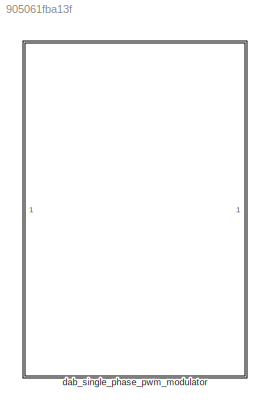
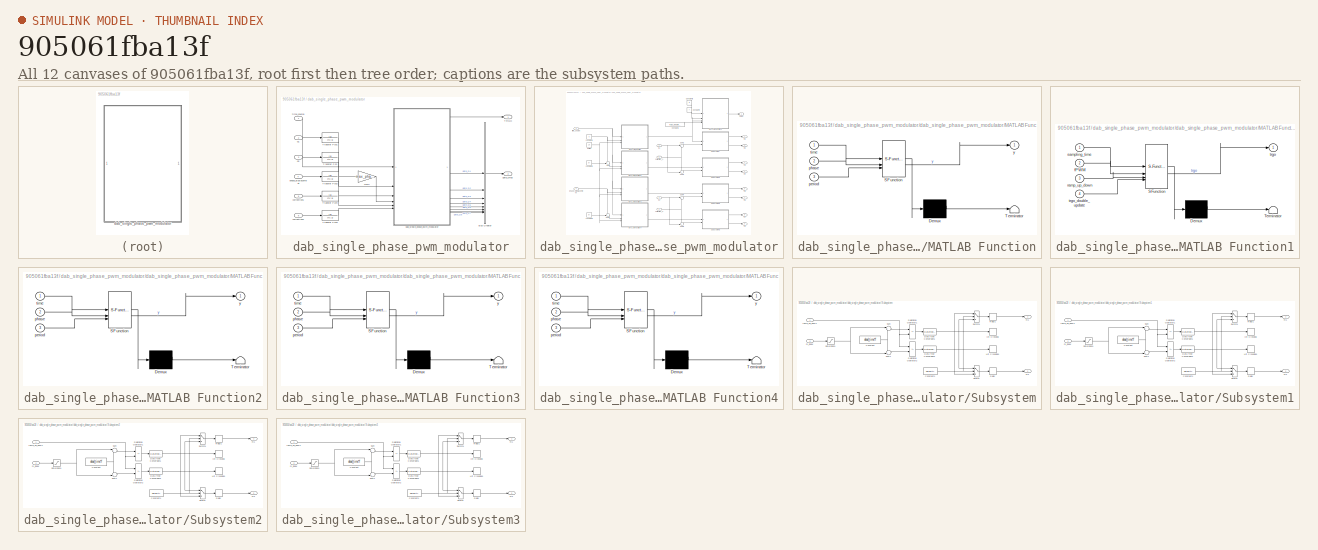
[diagram: thumbnail index - all 12 canvases of the model, root first then tree order]
MODEL slx_905061fba13f
KIND library
CONFIG AbsTol = auto
CONFIG EnableMultiTasking = off
CONFIG FixedStep = auto
CONFIG MaxStep = auto
CONFIG MinStep = auto
CONFIG RelTol = 1e-3
CONFIG SampleTimeConstraint = Unconstrained
CONFIG SolverName = VariableStepAuto
CONFIG StartTime = 0.0
CONFIG StopTime = 10.0
BLOCK [SubSystem] dab_single_phase_pwm_modulator
BLOCK [BusCreator] dab_single_phase_pwm_modulator/Bus Creator
  DisplayOption = bar
  InheritFromInputs = on
  Inputs = 8
BLOCK [Gain] dab_single_phase_pwm_modulator/Gain
  Gain = max_phase_displacement
  OutDataTypeStr = double
BLOCK [Outport] dab_single_phase_pwm_modulator/TRGO
BLOCK [TransferFcn] dab_single_phase_pwm_modulator/Transfer Fcn
  Denominator = [tc 1]
BLOCK [TransferFcn] dab_single_phase_pwm_modulator/Transfer Fcn1
  Denominator = [tc 1]
BLOCK [TransferFcn] dab_single_phase_pwm_modulator/Transfer Fcn2
  Denominator = [tc 1]
BLOCK [TransferFcn] dab_single_phase_pwm_modulator/Transfer Fcn3
  Denominator = [tc 1]
BLOCK [TransferFcn] dab_single_phase_pwm_modulator/Transfer Fcn4
  Denominator = [tc 1]
BLOCK [Inport] dab_single_phase_pwm_modulator/correction1
  Port = 5
BLOCK [Inport] dab_single_phase_pwm_modulator/correction2
  Port = 6
BLOCK [Inport] dab_single_phase_pwm_modulator/d1
  Port = 2
BLOCK [Inport] dab_single_phase_pwm_modulator/d2
  Port = 3
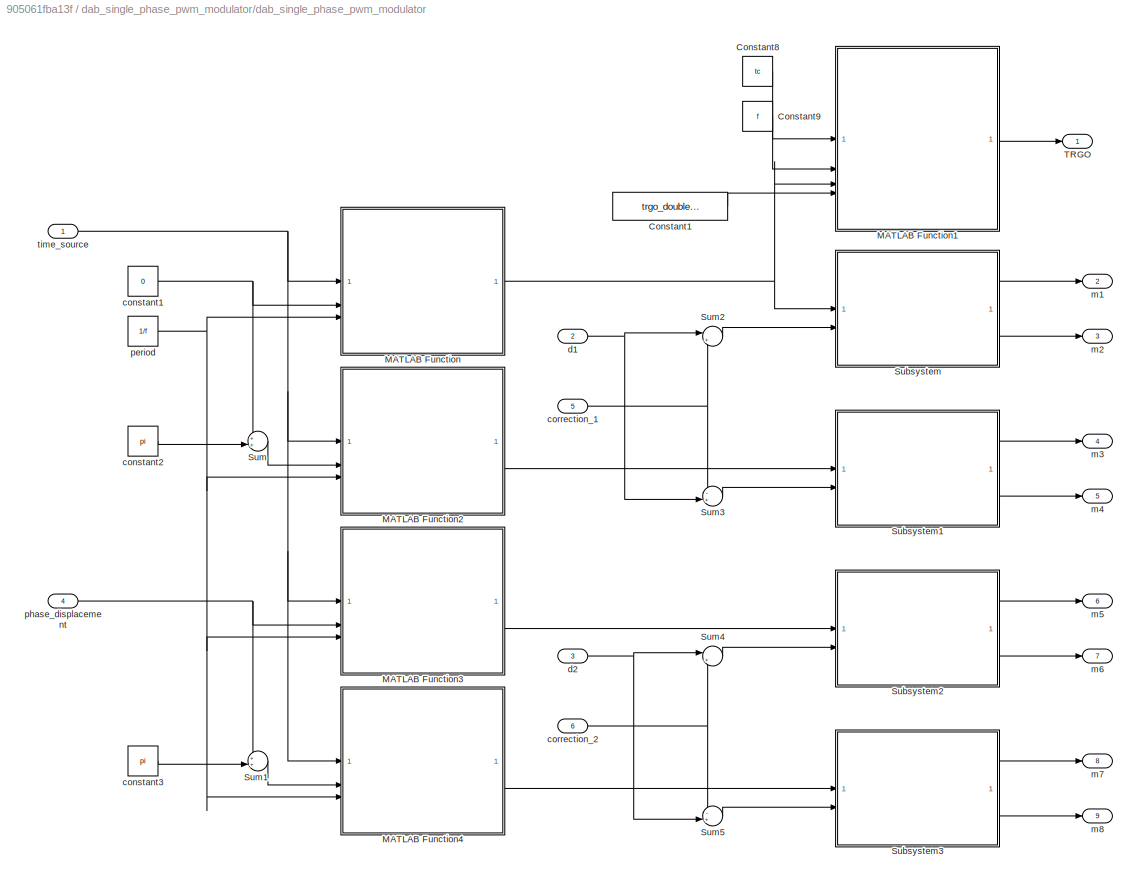
BLOCK [SubSystem] dab_single_phase_pwm_modulator/dab_single_phase_pwm_modulator
BLOCK [Constant] dab_single_phase_pwm_modulator/dab_single_phase_pwm_modulator/Constant1
  Value = trgo_double_update
BLOCK [Constant] dab_single_phase_pwm_modulator/dab_single_phase_pwm_modulator/Constant8
  Value = tc
BLOCK [Constant] dab_single_phase_pwm_modulator/dab_single_phase_pwm_modulator/Constant9
  Value = f
BLOCK [SubSystem] dab_single_phase_pwm_modulator/dab_single_phase_pwm_modulator/MATLAB Function
  ErrorFcn = Stateflow.Translate.translate
  PermitHierarchicalResolution = ExplicitOnly
  SFBlockType = MATLAB Function
  SystemSampleTime = tc
  TreatAsAtomicUnit = on
BLOCK [Demux] dab_single_phase_pwm_modulator/dab_single_phase_pwm_modulator/MATLAB Function/ Demux 
  Outputs = 1
BLOCK [S-Function] dab_single_phase_pwm_modulator/dab_single_phase_pwm_modulator/MATLAB Function/ SFunction 
  EnableBusSupport = off
  FunctionName = sf_sfun
  PortCounts = [3 2]
  SFcnIsStateOwnerBlock = off
  SFunctionDeploymentMode = off
  Tag = Stateflow S-Function 3
BLOCK [Terminator] dab_single_phase_pwm_modulator/dab_single_phase_pwm_modulator/MATLAB Function/ Terminator 
BLOCK [Inport] dab_single_phase_pwm_modulator/dab_single_phase_pwm_modulator/MATLAB Function/period
  Port = 3
BLOCK [Inport] dab_single_phase_pwm_modulator/dab_single_phase_pwm_modulator/MATLAB Function/phase
  Port = 2
BLOCK [Inport] dab_single_phase_pwm_modulator/dab_single_phase_pwm_modulator/MATLAB Function/time
BLOCK [Outport] dab_single_phase_pwm_modulator/dab_single_phase_pwm_modulator/MATLAB Function/y
BLOCK [SubSystem] dab_single_phase_pwm_modulator/dab_single_phase_pwm_modulator/MATLAB Function1
  ErrorFcn = Stateflow.Translate.translate
  PermitHierarchicalResolution = ExplicitOnly
  SFBlockType = MATLAB Function
  SystemSampleTime = tc
  TreatAsAtomicUnit = on
BLOCK [Demux] dab_single_phase_pwm_modulator/dab_single_phase_pwm_modulator/MATLAB Function1/ Demux 
  Outputs = 1
BLOCK [S-Function] dab_single_phase_pwm_modulator/dab_single_phase_pwm_modulator/MATLAB Function1/ SFunction 
  EnableBusSupport = off
  FunctionName = sf_sfun
  PortCounts = [4 2]
  SFcnIsStateOwnerBlock = off
  SFunctionDeploymentMode = off
  Tag = Stateflow S-Function 4
BLOCK [Terminator] dab_single_phase_pwm_modulator/dab_single_phase_pwm_modulator/MATLAB Function1/ Terminator 
BLOCK [Inport] dab_single_phase_pwm_modulator/dab_single_phase_pwm_modulator/MATLAB Function1/fPWM
  Port = 2
BLOCK [Inport] dab_single_phase_pwm_modulator/dab_single_phase_pwm_modulator/MATLAB Function1/ramp_up_down
  Port = 3
BLOCK [Inport] dab_single_phase_pwm_modulator/dab_single_phase_pwm_modulator/MATLAB Function1/sampling_time
BLOCK [Outport] dab_single_phase_pwm_modulator/dab_single_phase_pwm_modulator/MATLAB Function1/trgo
BLOCK [Inport] dab_single_phase_pwm_modulator/dab_single_phase_pwm_modulator/MATLAB Function1/trgo_double_update
  Port = 4
BLOCK [SubSystem] dab_single_phase_pwm_modulator/dab_single_phase_pwm_modulator/MATLAB Function2
  ErrorFcn = Stateflow.Translate.translate
  PermitHierarchicalResolution = ExplicitOnly
  SFBlockType = MATLAB Function
  SystemSampleTime = tc
  TreatAsAtomicUnit = on
BLOCK [Demux] dab_single_phase_pwm_modulator/dab_single_phase_pwm_modulator/MATLAB Function2/ Demux 
  Outputs = 1
BLOCK [S-Function] dab_single_phase_pwm_modulator/dab_single_phase_pwm_modulator/MATLAB Function2/ SFunction 
  EnableBusSupport = off
  FunctionName = sf_sfun
  PortCounts = [3 2]
  SFcnIsStateOwnerBlock = off
  SFunctionDeploymentMode = off
  Tag = Stateflow S-Function 2
BLOCK [Terminator] dab_single_phase_pwm_modulator/dab_single_phase_pwm_modulator/MATLAB Function2/ Terminator 
BLOCK [Inport] dab_single_phase_pwm_modulator/dab_single_phase_pwm_modulator/MATLAB Function2/period
  Port = 3
BLOCK [Inport] dab_single_phase_pwm_modulator/dab_single_phase_pwm_modulator/MATLAB Function2/phase
  Port = 2
BLOCK [Inport] dab_single_phase_pwm_modulator/dab_single_phase_pwm_modulator/MATLAB Function2/time
BLOCK [Outport] dab_single_phase_pwm_modulator/dab_single_phase_pwm_modulator/MATLAB Function2/y
BLOCK [SubSystem] dab_single_phase_pwm_modulator/dab_single_phase_pwm_modulator/MATLAB Function3
  ErrorFcn = Stateflow.Translate.translate
  PermitHierarchicalResolution = ExplicitOnly
  SFBlockType = MATLAB Function
  SystemSampleTime = tc
  TreatAsAtomicUnit = on
BLOCK [Demux] dab_single_phase_pwm_modulator/dab_single_phase_pwm_modulator/MATLAB Function3/ Demux 
  Outputs = 1
BLOCK [S-Function] dab_single_phase_pwm_modulator/dab_single_phase_pwm_modulator/MATLAB Function3/ SFunction 
  EnableBusSupport = off
  FunctionName = sf_sfun
  PortCounts = [3 2]
  SFcnIsStateOwnerBlock = off
  SFunctionDeploymentMode = off
  Tag = Stateflow S-Function 5
BLOCK [Terminator] dab_single_phase_pwm_modulator/dab_single_phase_pwm_modulator/MATLAB Function3/ Terminator 
BLOCK [Inport] dab_single_phase_pwm_modulator/dab_single_phase_pwm_modulator/MATLAB Function3/period
  Port = 3
BLOCK [Inport] dab_single_phase_pwm_modulator/dab_single_phase_pwm_modulator/MATLAB Function3/phase
  Port = 2
BLOCK [Inport] dab_single_phase_pwm_modulator/dab_single_phase_pwm_modulator/MATLAB Function3/time
BLOCK [Outport] dab_single_phase_pwm_modulator/dab_single_phase_pwm_modulator/MATLAB Function3/y
BLOCK [SubSystem] dab_single_phase_pwm_modulator/dab_single_phase_pwm_modulator/MATLAB Function4
  ErrorFcn = Stateflow.Translate.translate
  PermitHierarchicalResolution = ExplicitOnly
  SFBlockType = MATLAB Function
  SystemSampleTime = tc
  TreatAsAtomicUnit = on
BLOCK [Demux] dab_single_phase_pwm_modulator/dab_single_phase_pwm_modulator/MATLAB Function4/ Demux 
  Outputs = 1
BLOCK [S-Function] dab_single_phase_pwm_modulator/dab_single_phase_pwm_modulator/MATLAB Function4/ SFunction 
  EnableBusSupport = off
  FunctionName = sf_sfun
  PortCounts = [3 2]
  SFcnIsStateOwnerBlock = off
  SFunctionDeploymentMode = off
  Tag = Stateflow S-Function 6
BLOCK [Terminator] dab_single_phase_pwm_modulator/dab_single_phase_pwm_modulator/MATLAB Function4/ Terminator 
BLOCK [Inport] dab_single_phase_pwm_modulator/dab_single_phase_pwm_modulator/MATLAB Function4/period
  Port = 3
BLOCK [Inport] dab_single_phase_pwm_modulator/dab_single_phase_pwm_modulator/MATLAB Function4/phase
  Port = 2
BLOCK [Inport] dab_single_phase_pwm_modulator/dab_single_phase_pwm_modulator/MATLAB Function4/time
BLOCK [Outport] dab_single_phase_pwm_modulator/dab_single_phase_pwm_modulator/MATLAB Function4/y
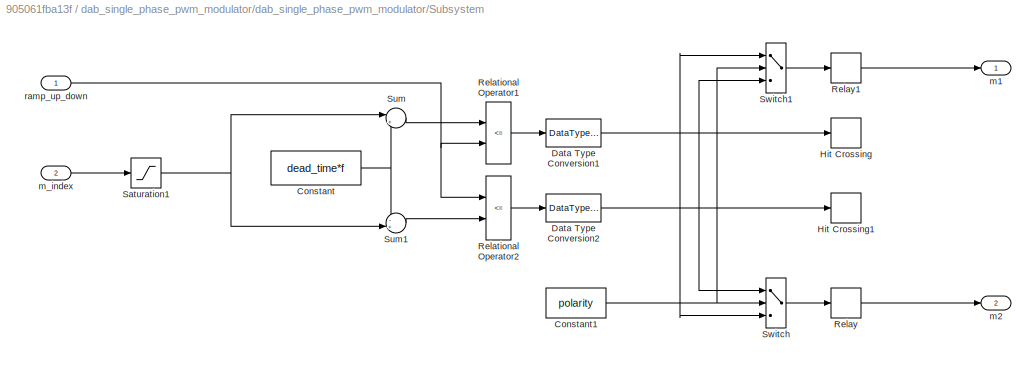
BLOCK [SubSystem] dab_single_phase_pwm_modulator/dab_single_phase_pwm_modulator/Subsystem
BLOCK [Constant] dab_single_phase_pwm_modulator/dab_single_phase_pwm_modulator/Subsystem/Constant
  Value = dead_time*f
BLOCK [Constant] dab_single_phase_pwm_modulator/dab_single_phase_pwm_modulator/Subsystem/Constant1
  Value = polarity
BLOCK [DataTypeConversion] dab_single_phase_pwm_modulator/dab_single_phase_pwm_modulator/Subsystem/Data Type Conversion1
BLOCK [DataTypeConversion] dab_single_phase_pwm_modulator/dab_single_phase_pwm_modulator/Subsystem/Data Type Conversion2
BLOCK [HitCross] dab_single_phase_pwm_modulator/dab_single_phase_pwm_modulator/Subsystem/Hit Crossing
  ShowOutputPort = off
BLOCK [HitCross] dab_single_phase_pwm_modulator/dab_single_phase_pwm_modulator/Subsystem/Hit Crossing1
  ShowOutputPort = off
BLOCK [RelationalOperator] dab_single_phase_pwm_modulator/dab_single_phase_pwm_modulator/Subsystem/Relational Operator1
  InputSameDT = off
  Operator = <=
BLOCK [RelationalOperator] dab_single_phase_pwm_modulator/dab_single_phase_pwm_modulator/Subsystem/Relational Operator2
  InputSameDT = off
  Operator = <=
BLOCK [Relay] dab_single_phase_pwm_modulator/dab_single_phase_pwm_modulator/Subsystem/Relay
  OffOutputValue = neg_cmd_gate
  OnOutputValue = pos_cmd_gate
BLOCK [Relay] dab_single_phase_pwm_modulator/dab_single_phase_pwm_modulator/Subsystem/Relay1
  OffOutputValue = neg_cmd_gate
  OnOutputValue = pos_cmd_gate
BLOCK [Saturate] dab_single_phase_pwm_modulator/dab_single_phase_pwm_modulator/Subsystem/Saturation1
  LowerLimit = m_low
  UpperLimit = m_up
BLOCK [Sum] dab_single_phase_pwm_modulator/dab_single_phase_pwm_modulator/Subsystem/Sum
  Inputs = |++
  SaturateOnIntegerOverflow = on
BLOCK [Sum] dab_single_phase_pwm_modulator/dab_single_phase_pwm_modulator/Subsystem/Sum1
  Inputs = -+|
  SaturateOnIntegerOverflow = on
BLOCK [Switch] dab_single_phase_pwm_modulator/dab_single_phase_pwm_modulator/Subsystem/Switch
  Criteria = u2 > Threshold
  InputSameDT = off
  SaturateOnIntegerOverflow = off
BLOCK [Switch] dab_single_phase_pwm_modulator/dab_single_phase_pwm_modulator/Subsystem/Switch1
  Criteria = u2 > Threshold
  InputSameDT = off
  SaturateOnIntegerOverflow = off
BLOCK [Outport] dab_single_phase_pwm_modulator/dab_single_phase_pwm_modulator/Subsystem/m1
BLOCK [Outport] dab_single_phase_pwm_modulator/dab_single_phase_pwm_modulator/Subsystem/m2
  Port = 2
BLOCK [Inport] dab_single_phase_pwm_modulator/dab_single_phase_pwm_modulator/Subsystem/m_index
  Port = 2
BLOCK [Inport] dab_single_phase_pwm_modulator/dab_single_phase_pwm_modulator/Subsystem/ramp_up_down
BLOCK [SubSystem] dab_single_phase_pwm_modulator/dab_single_phase_pwm_modulator/Subsystem1
BLOCK [Constant] dab_single_phase_pwm_modulator/dab_single_phase_pwm_modulator/Subsystem1/Constant
  Value = dead_time*f
BLOCK [Constant] dab_single_phase_pwm_modulator/dab_single_phase_pwm_modulator/Subsystem1/Constant1
  Value = polarity
BLOCK [DataTypeConversion] dab_single_phase_pwm_modulator/dab_single_phase_pwm_modulator/Subsystem1/Data Type Conversion1
BLOCK [DataTypeConversion] dab_single_phase_pwm_modulator/dab_single_phase_pwm_modulator/Subsystem1/Data Type Conversion2
BLOCK [HitCross] dab_single_phase_pwm_modulator/dab_single_phase_pwm_modulator/Subsystem1/Hit Crossing
  ShowOutputPort = off
BLOCK [HitCross] dab_single_phase_pwm_modulator/dab_single_phase_pwm_modulator/Subsystem1/Hit Crossing1
  ShowOutputPort = off
BLOCK [RelationalOperator] dab_single_phase_pwm_modulator/dab_single_phase_pwm_modulator/Subsystem1/Relational Operator1
  InputSameDT = off
  Operator = <=
BLOCK [RelationalOperator] dab_single_phase_pwm_modulator/dab_single_phase_pwm_modulator/Subsystem1/Relational Operator2
  InputSameDT = off
  Operator = <=
BLOCK [Relay] dab_single_phase_pwm_modulator/dab_single_phase_pwm_modulator/Subsystem1/Relay
  OffOutputValue = neg_cmd_gate
  OnOutputValue = pos_cmd_gate
BLOCK [Relay] dab_single_phase_pwm_modulator/dab_single_phase_pwm_modulator/Subsystem1/Relay1
  OffOutputValue = neg_cmd_gate
  OnOutputValue = pos_cmd_gate
BLOCK [Saturate] dab_single_phase_pwm_modulator/dab_single_phase_pwm_modulator/Subsystem1/Saturation1
  LowerLimit = m_low
  UpperLimit = m_up
BLOCK [Sum] dab_single_phase_pwm_modulator/dab_single_phase_pwm_modulator/Subsystem1/Sum
  Inputs = |++
  SaturateOnIntegerOverflow = on
BLOCK [Sum] dab_single_phase_pwm_modulator/dab_single_phase_pwm_modulator/Subsystem1/Sum1
  Inputs = -+|
  SaturateOnIntegerOverflow = on
BLOCK [Switch] dab_single_phase_pwm_modulator/dab_single_phase_pwm_modulator/Subsystem1/Switch
  Criteria = u2 > Threshold
  InputSameDT = off
  SaturateOnIntegerOverflow = off
BLOCK [Switch] dab_single_phase_pwm_modulator/dab_single_phase_pwm_modulator/Subsystem1/Switch1
  Criteria = u2 > Threshold
  InputSameDT = off
  SaturateOnIntegerOverflow = off
BLOCK [Outport] dab_single_phase_pwm_modulator/dab_single_phase_pwm_modulator/Subsystem1/m1
BLOCK [Outport] dab_single_phase_pwm_modulator/dab_single_phase_pwm_modulator/Subsystem1/m2
  Port = 2
BLOCK [Inport] dab_single_phase_pwm_modulator/dab_single_phase_pwm_modulator/Subsystem1/m_index
  Port = 2
BLOCK [Inport] dab_single_phase_pwm_modulator/dab_single_phase_pwm_modulator/Subsystem1/ramp_up_down
BLOCK [SubSystem] dab_single_phase_pwm_modulator/dab_single_phase_pwm_modulator/Subsystem2
BLOCK [Constant] dab_single_phase_pwm_modulator/dab_single_phase_pwm_modulator/Subsystem2/Constant
  Value = dead_time*f
BLOCK [Constant] dab_single_phase_pwm_modulator/dab_single_phase_pwm_modulator/Subsystem2/Constant1
  Value = polarity
BLOCK [DataTypeConversion] dab_single_phase_pwm_modulator/dab_single_phase_pwm_modulator/Subsystem2/Data Type Conversion1
BLOCK [DataTypeConversion] dab_single_phase_pwm_modulator/dab_single_phase_pwm_modulator/Subsystem2/Data Type Conversion2
BLOCK [HitCross] dab_single_phase_pwm_modulator/dab_single_phase_pwm_modulator/Subsystem2/Hit Crossing
  ShowOutputPort = off
BLOCK [HitCross] dab_single_phase_pwm_modulator/dab_single_phase_pwm_modulator/Subsystem2/Hit Crossing1
  ShowOutputPort = off
BLOCK [RelationalOperator] dab_single_phase_pwm_modulator/dab_single_phase_pwm_modulator/Subsystem2/Relational Operator1
  InputSameDT = off
  Operator = <=
BLOCK [RelationalOperator] dab_single_phase_pwm_modulator/dab_single_phase_pwm_modulator/Subsystem2/Relational Operator2
  InputSameDT = off
  Operator = <=
BLOCK [Relay] dab_single_phase_pwm_modulator/dab_single_phase_pwm_modulator/Subsystem2/Relay
  OffOutputValue = neg_cmd_gate
  OnOutputValue = pos_cmd_gate
BLOCK [Relay] dab_single_phase_pwm_modulator/dab_single_phase_pwm_modulator/Subsystem2/Relay1
  OffOutputValue = neg_cmd_gate
  OnOutputValue = pos_cmd_gate
BLOCK [Saturate] dab_single_phase_pwm_modulator/dab_single_phase_pwm_modulator/Subsystem2/Saturation1
  LowerLimit = m_low
  UpperLimit = m_up
BLOCK [Sum] dab_single_phase_pwm_modulator/dab_single_phase_pwm_modulator/Subsystem2/Sum
  Inputs = |++
  SaturateOnIntegerOverflow = on
BLOCK [Sum] dab_single_phase_pwm_modulator/dab_single_phase_pwm_modulator/Subsystem2/Sum1
  Inputs = -+|
  SaturateOnIntegerOverflow = on
BLOCK [Switch] dab_single_phase_pwm_modulator/dab_single_phase_pwm_modulator/Subsystem2/Switch
  Criteria = u2 > Threshold
  InputSameDT = off
  SaturateOnIntegerOverflow = off
BLOCK [Switch] dab_single_phase_pwm_modulator/dab_single_phase_pwm_modulator/Subsystem2/Switch1
  Criteria = u2 > Threshold
  InputSameDT = off
  SaturateOnIntegerOverflow = off
BLOCK [Outport] dab_single_phase_pwm_modulator/dab_single_phase_pwm_modulator/Subsystem2/m1
BLOCK [Outport] dab_single_phase_pwm_modulator/dab_single_phase_pwm_modulator/Subsystem2/m2
  Port = 2
BLOCK [Inport] dab_single_phase_pwm_modulator/dab_single_phase_pwm_modulator/Subsystem2/m_index
  Port = 2
BLOCK [Inport] dab_single_phase_pwm_modulator/dab_single_phase_pwm_modulator/Subsystem2/ramp_up_down
BLOCK [SubSystem] dab_single_phase_pwm_modulator/dab_single_phase_pwm_modulator/Subsystem3
BLOCK [Constant] dab_single_phase_pwm_modulator/dab_single_phase_pwm_modulator/Subsystem3/Constant
  Value = dead_time*f
BLOCK [Constant] dab_single_phase_pwm_modulator/dab_single_phase_pwm_modulator/Subsystem3/Constant1
  Value = polarity
BLOCK [DataTypeConversion] dab_single_phase_pwm_modulator/dab_single_phase_pwm_modulator/Subsystem3/Data Type Conversion1
BLOCK [DataTypeConversion] dab_single_phase_pwm_modulator/dab_single_phase_pwm_modulator/Subsystem3/Data Type Conversion2
BLOCK [HitCross] dab_single_phase_pwm_modulator/dab_single_phase_pwm_modulator/Subsystem3/Hit Crossing
  ShowOutputPort = off
BLOCK [HitCross] dab_single_phase_pwm_modulator/dab_single_phase_pwm_modulator/Subsystem3/Hit Crossing1
  ShowOutputPort = off
BLOCK [RelationalOperator] dab_single_phase_pwm_modulator/dab_single_phase_pwm_modulator/Subsystem3/Relational Operator1
  InputSameDT = off
  Operator = <=
BLOCK [RelationalOperator] dab_single_phase_pwm_modulator/dab_single_phase_pwm_modulator/Subsystem3/Relational Operator2
  InputSameDT = off
  Operator = <=
BLOCK [Relay] dab_single_phase_pwm_modulator/dab_single_phase_pwm_modulator/Subsystem3/Relay
  OffOutputValue = neg_cmd_gate
  OnOutputValue = pos_cmd_gate
BLOCK [Relay] dab_single_phase_pwm_modulator/dab_single_phase_pwm_modulator/Subsystem3/Relay1
  OffOutputValue = neg_cmd_gate
  OnOutputValue = pos_cmd_gate
BLOCK [Saturate] dab_single_phase_pwm_modulator/dab_single_phase_pwm_modulator/Subsystem3/Saturation1
  LowerLimit = m_low
  UpperLimit = m_up
BLOCK [Sum] dab_single_phase_pwm_modulator/dab_single_phase_pwm_modulator/Subsystem3/Sum
  Inputs = |++
  SaturateOnIntegerOverflow = on
BLOCK [Sum] dab_single_phase_pwm_modulator/dab_single_phase_pwm_modulator/Subsystem3/Sum1
  Inputs = -+|
  SaturateOnIntegerOverflow = on
BLOCK [Switch] dab_single_phase_pwm_modulator/dab_single_phase_pwm_modulator/Subsystem3/Switch
  Criteria = u2 > Threshold
  InputSameDT = off
  SaturateOnIntegerOverflow = off
BLOCK [Switch] dab_single_phase_pwm_modulator/dab_single_phase_pwm_modulator/Subsystem3/Switch1
  Criteria = u2 > Threshold
  InputSameDT = off
  SaturateOnIntegerOverflow = off
BLOCK [Outport] dab_single_phase_pwm_modulator/dab_single_phase_pwm_modulator/Subsystem3/m1
BLOCK [Outport] dab_single_phase_pwm_modulator/dab_single_phase_pwm_modulator/Subsystem3/m2
  Port = 2
BLOCK [Inport] dab_single_phase_pwm_modulator/dab_single_phase_pwm_modulator/Subsystem3/m_index
  Port = 2
BLOCK [Inport] dab_single_phase_pwm_modulator/dab_single_phase_pwm_modulator/Subsystem3/ramp_up_down
BLOCK [Sum] dab_single_phase_pwm_modulator/dab_single_phase_pwm_modulator/Sum
  Inputs = ++|
BLOCK [Sum] dab_single_phase_pwm_modulator/dab_single_phase_pwm_modulator/Sum1
  Inputs = ++|
BLOCK [Sum] dab_single_phase_pwm_modulator/dab_single_phase_pwm_modulator/Sum2
  Inputs = |++
BLOCK [Sum] dab_single_phase_pwm_modulator/dab_single_phase_pwm_modulator/Sum3
  Inputs = -+|
  NameLocation = top
BLOCK [Sum] dab_single_phase_pwm_modulator/dab_single_phase_pwm_modulator/Sum4
  Inputs = |++
BLOCK [Sum] dab_single_phase_pwm_modulator/dab_single_phase_pwm_modulator/Sum5
  Inputs = -+|
  NameLocation = top
BLOCK [Outport] dab_single_phase_pwm_modulator/dab_single_phase_pwm_modulator/TRGO
BLOCK [Constant] dab_single_phase_pwm_modulator/dab_single_phase_pwm_modulator/constant1
  Value = 0
BLOCK [Constant] dab_single_phase_pwm_modulator/dab_single_phase_pwm_modulator/constant2
  Value = pi
BLOCK [Constant] dab_single_phase_pwm_modulator/dab_single_phase_pwm_modulator/constant3 
  Value = pi
BLOCK [Inport] dab_single_phase_pwm_modulator/dab_single_phase_pwm_modulator/correction_1
  Port = 5
BLOCK [Inport] dab_single_phase_pwm_modulator/dab_single_phase_pwm_modulator/correction_2
  Port = 6
BLOCK [Inport] dab_single_phase_pwm_modulator/dab_single_phase_pwm_modulator/d1
  Port = 2
BLOCK [Inport] dab_single_phase_pwm_modulator/dab_single_phase_pwm_modulator/d2
  Port = 3
BLOCK [Outport] dab_single_phase_pwm_modulator/dab_single_phase_pwm_modulator/m1
  Port = 2
BLOCK [Outport] dab_single_phase_pwm_modulator/dab_single_phase_pwm_modulator/m2
  Port = 3
BLOCK [Outport] dab_single_phase_pwm_modulator/dab_single_phase_pwm_modulator/m3
  Port = 4
BLOCK [Outport] dab_single_phase_pwm_modulator/dab_single_phase_pwm_modulator/m4
  Port = 5
BLOCK [Outport] dab_single_phase_pwm_modulator/dab_single_phase_pwm_modulator/m5
  Port = 6
BLOCK [Outport] dab_single_phase_pwm_modulator/dab_single_phase_pwm_modulator/m6
  Port = 7
BLOCK [Outport] dab_single_phase_pwm_modulator/dab_single_phase_pwm_modulator/m7
  Port = 8
BLOCK [Outport] dab_single_phase_pwm_modulator/dab_single_phase_pwm_modulator/m8
  Port = 9
BLOCK [Constant] dab_single_phase_pwm_modulator/dab_single_phase_pwm_modulator/period
  Value = 1/f
BLOCK [Inport] dab_single_phase_pwm_modulator/dab_single_phase_pwm_modulator/phase_displacement
  Port = 4
BLOCK [Inport] dab_single_phase_pwm_modulator/dab_single_phase_pwm_modulator/time_source
BLOCK [Outport] dab_single_phase_pwm_modulator/gate_cmds
  Port = 2
BLOCK [Inport] dab_single_phase_pwm_modulator/phase_displacement
  Port = 4
BLOCK [Inport] dab_single_phase_pwm_modulator/time_source
LINE dab_single_phase_pwm_modulator/Bus Creator:1 -> dab_single_phase_pwm_modulator/gate_cmds:1
LINE dab_single_phase_pwm_modulator/Gain:1 -> dab_single_phase_pwm_modulator/dab_single_phase_pwm_modulator:4
LINE dab_single_phase_pwm_modulator/Transfer Fcn1:1 -> dab_single_phase_pwm_modulator/dab_single_phase_pwm_modulator:2
LINE dab_single_phase_pwm_modulator/Transfer Fcn2:1 -> dab_single_phase_pwm_modulator/Gain:1
LINE dab_single_phase_pwm_modulator/Transfer Fcn3:1 -> dab_single_phase_pwm_modulator/dab_single_phase_pwm_modulator:6
LINE dab_single_phase_pwm_modulator/Transfer Fcn4:1 -> dab_single_phase_pwm_modulator/dab_single_phase_pwm_modulator:5
LINE dab_single_phase_pwm_modulator/Transfer Fcn:1 -> dab_single_phase_pwm_modulator/dab_single_phase_pwm_modulator:3
LINE dab_single_phase_pwm_modulator/correction1:1 -> dab_single_phase_pwm_modulator/Transfer Fcn4:1
LINE dab_single_phase_pwm_modulator/correction2:1 -> dab_single_phase_pwm_modulator/Transfer Fcn3:1
LINE dab_single_phase_pwm_modulator/d1:1 -> dab_single_phase_pwm_modulator/Transfer Fcn1:1
LINE dab_single_phase_pwm_modulator/d2:1 -> dab_single_phase_pwm_modulator/Transfer Fcn:1
LINE dab_single_phase_pwm_modulator/dab_single_phase_pwm_modulator/Constant1:1 -> dab_single_phase_pwm_modulator/dab_single_phase_pwm_modulator/MATLAB Function1:4
LINE dab_single_phase_pwm_modulator/dab_single_phase_pwm_modulator/Constant8:1 -> dab_single_phase_pwm_modulator/dab_single_phase_pwm_modulator/MATLAB Function1:1
LINE dab_single_phase_pwm_modulator/dab_single_phase_pwm_modulator/Constant9:1 -> dab_single_phase_pwm_modulator/dab_single_phase_pwm_modulator/MATLAB Function1:2
LINE dab_single_phase_pwm_modulator/dab_single_phase_pwm_modulator/MATLAB Function1:1 -> dab_single_phase_pwm_modulator/dab_single_phase_pwm_modulator/TRGO:1
LINE dab_single_phase_pwm_modulator/dab_single_phase_pwm_modulator/MATLAB Function2:1 -> dab_single_phase_pwm_modulator/dab_single_phase_pwm_modulator/Subsystem1:1
LINE dab_single_phase_pwm_modulator/dab_single_phase_pwm_modulator/MATLAB Function3:1 -> dab_single_phase_pwm_modulator/dab_single_phase_pwm_modulator/Subsystem2:1
LINE dab_single_phase_pwm_modulator/dab_single_phase_pwm_modulator/MATLAB Function4:1 -> dab_single_phase_pwm_modulator/dab_single_phase_pwm_modulator/Subsystem3:1
NET dab_single_phase_pwm_modulator/dab_single_phase_pwm_modulator/MATLAB Function:1 -> dab_single_phase_pwm_modulator/dab_single_phase_pwm_modulator/MATLAB Function1:3, dab_single_phase_pwm_modulator/dab_single_phase_pwm_modulator/Subsystem:1
NET dab_single_phase_pwm_modulator/dab_single_phase_pwm_modulator/Subsystem/Constant1:1 -> dab_single_phase_pwm_modulator/dab_single_phase_pwm_modulator/Subsystem/Switch1:2, dab_single_phase_pwm_modulator/dab_single_phase_pwm_modulator/Subsystem/Switch:2
NET dab_single_phase_pwm_modulator/dab_single_phase_pwm_modulator/Subsystem/Constant:1 -> dab_single_phase_pwm_modulator/dab_single_phase_pwm_modulator/Subsystem/Sum1:1, dab_single_phase_pwm_modulator/dab_single_phase_pwm_modulator/Subsystem/Sum:2
NET dab_single_phase_pwm_modulator/dab_single_phase_pwm_modulator/Subsystem/Data Type Conversion1:1 -> dab_single_phase_pwm_modulator/dab_single_phase_pwm_modulator/Subsystem/Hit Crossing:1, dab_single_phase_pwm_modulator/dab_single_phase_pwm_modulator/Subsystem/Switch1:1, dab_single_phase_pwm_modulator/dab_single_phase_pwm_modulator/Subsystem/Switch:3
NET dab_single_phase_pwm_modulator/dab_single_phase_pwm_modulator/Subsystem/Data Type Conversion2:1 -> dab_single_phase_pwm_modulator/dab_single_phase_pwm_modulator/Subsystem/Hit Crossing1:1, dab_single_phase_pwm_modulator/dab_single_phase_pwm_modulator/Subsystem/Switch1:3, dab_single_phase_pwm_modulator/dab_single_phase_pwm_modulator/Subsystem/Switch:1
LINE dab_single_phase_pwm_modulator/dab_single_phase_pwm_modulator/Subsystem/Relational Operator1:1 -> dab_single_phase_pwm_modulator/dab_single_phase_pwm_modulator/Subsystem/Data Type Conversion1:1
LINE dab_single_phase_pwm_modulator/dab_single_phase_pwm_modulator/Subsystem/Relational Operator2:1 -> dab_single_phase_pwm_modulator/dab_single_phase_pwm_modulator/Subsystem/Data Type Conversion2:1
LINE dab_single_phase_pwm_modulator/dab_single_phase_pwm_modulator/Subsystem/Relay1:1 -> dab_single_phase_pwm_modulator/dab_single_phase_pwm_modulator/Subsystem/m1:1
LINE dab_single_phase_pwm_modulator/dab_single_phase_pwm_modulator/Subsystem/Relay:1 -> dab_single_phase_pwm_modulator/dab_single_phase_pwm_modulator/Subsystem/m2:1
NET dab_single_phase_pwm_modulator/dab_single_phase_pwm_modulator/Subsystem/Saturation1:1 -> dab_single_phase_pwm_modulator/dab_single_phase_pwm_modulator/Subsystem/Sum1:2, dab_single_phase_pwm_modulator/dab_single_phase_pwm_modulator/Subsystem/Sum:1
LINE dab_single_phase_pwm_modulator/dab_single_phase_pwm_modulator/Subsystem/Sum1:1 -> dab_single_phase_pwm_modulator/dab_single_phase_pwm_modulator/Subsystem/Relational Operator2:2
LINE dab_single_phase_pwm_modulator/dab_single_phase_pwm_modulator/Subsystem/Sum:1 -> dab_single_phase_pwm_modulator/dab_single_phase_pwm_modulator/Subsystem/Relational Operator1:1
LINE dab_single_phase_pwm_modulator/dab_single_phase_pwm_modulator/Subsystem/Switch1:1 -> dab_single_phase_pwm_modulator/dab_single_phase_pwm_modulator/Subsystem/Relay1:1
LINE dab_single_phase_pwm_modulator/dab_single_phase_pwm_modulator/Subsystem/Switch:1 -> dab_single_phase_pwm_modulator/dab_single_phase_pwm_modulator/Subsystem/Relay:1
LINE dab_single_phase_pwm_modulator/dab_single_phase_pwm_modulator/Subsystem/m_index:1 -> dab_single_phase_pwm_modulator/dab_single_phase_pwm_modulator/Subsystem/Saturation1:1
NET dab_single_phase_pwm_modulator/dab_single_phase_pwm_modulator/Subsystem/ramp_up_down:1 -> dab_single_phase_pwm_modulator/dab_single_phase_pwm_modulator/Subsystem/Relational Operator1:2, dab_single_phase_pwm_modulator/dab_single_phase_pwm_modulator/Subsystem/Relational Operator2:1
NET dab_single_phase_pwm_modulator/dab_single_phase_pwm_modulator/Subsystem1/Constant1:1 -> dab_single_phase_pwm_modulator/dab_single_phase_pwm_modulator/Subsystem1/Switch1:2, dab_single_phase_pwm_modulator/dab_single_phase_pwm_modulator/Subsystem1/Switch:2
NET dab_single_phase_pwm_modulator/dab_single_phase_pwm_modulator/Subsystem1/Constant:1 -> dab_single_phase_pwm_modulator/dab_single_phase_pwm_modulator/Subsystem1/Sum1:1, dab_single_phase_pwm_modulator/dab_single_phase_pwm_modulator/Subsystem1/Sum:2
NET dab_single_phase_pwm_modulator/dab_single_phase_pwm_modulator/Subsystem1/Data Type Conversion1:1 -> dab_single_phase_pwm_modulator/dab_single_phase_pwm_modulator/Subsystem1/Hit Crossing:1, dab_single_phase_pwm_modulator/dab_single_phase_pwm_modulator/Subsystem1/Switch1:1, dab_single_phase_pwm_modulator/dab_single_phase_pwm_modulator/Subsystem1/Switch:3
NET dab_single_phase_pwm_modulator/dab_single_phase_pwm_modulator/Subsystem1/Data Type Conversion2:1 -> dab_single_phase_pwm_modulator/dab_single_phase_pwm_modulator/Subsystem1/Hit Crossing1:1, dab_single_phase_pwm_modulator/dab_single_phase_pwm_modulator/Subsystem1/Switch1:3, dab_single_phase_pwm_modulator/dab_single_phase_pwm_modulator/Subsystem1/Switch:1
LINE dab_single_phase_pwm_modulator/dab_single_phase_pwm_modulator/Subsystem1/Relational Operator1:1 -> dab_single_phase_pwm_modulator/dab_single_phase_pwm_modulator/Subsystem1/Data Type Conversion1:1
LINE dab_single_phase_pwm_modulator/dab_single_phase_pwm_modulator/Subsystem1/Relational Operator2:1 -> dab_single_phase_pwm_modulator/dab_single_phase_pwm_modulator/Subsystem1/Data Type Conversion2:1
LINE dab_single_phase_pwm_modulator/dab_single_phase_pwm_modulator/Subsystem1/Relay1:1 -> dab_single_phase_pwm_modulator/dab_single_phase_pwm_modulator/Subsystem1/m1:1
LINE dab_single_phase_pwm_modulator/dab_single_phase_pwm_modulator/Subsystem1/Relay:1 -> dab_single_phase_pwm_modulator/dab_single_phase_pwm_modulator/Subsystem1/m2:1
NET dab_single_phase_pwm_modulator/dab_single_phase_pwm_modulator/Subsystem1/Saturation1:1 -> dab_single_phase_pwm_modulator/dab_single_phase_pwm_modulator/Subsystem1/Sum1:2, dab_single_phase_pwm_modulator/dab_single_phase_pwm_modulator/Subsystem1/Sum:1
LINE dab_single_phase_pwm_modulator/dab_single_phase_pwm_modulator/Subsystem1/Sum1:1 -> dab_single_phase_pwm_modulator/dab_single_phase_pwm_modulator/Subsystem1/Relational Operator2:2
LINE dab_single_phase_pwm_modulator/dab_single_phase_pwm_modulator/Subsystem1/Sum:1 -> dab_single_phase_pwm_modulator/dab_single_phase_pwm_modulator/Subsystem1/Relational Operator1:1
LINE dab_single_phase_pwm_modulator/dab_single_phase_pwm_modulator/Subsystem1/Switch1:1 -> dab_single_phase_pwm_modulator/dab_single_phase_pwm_modulator/Subsystem1/Relay1:1
LINE dab_single_phase_pwm_modulator/dab_single_phase_pwm_modulator/Subsystem1/Switch:1 -> dab_single_phase_pwm_modulator/dab_single_phase_pwm_modulator/Subsystem1/Relay:1
LINE dab_single_phase_pwm_modulator/dab_single_phase_pwm_modulator/Subsystem1/m_index:1 -> dab_single_phase_pwm_modulator/dab_single_phase_pwm_modulator/Subsystem1/Saturation1:1
NET dab_single_phase_pwm_modulator/dab_single_phase_pwm_modulator/Subsystem1/ramp_up_down:1 -> dab_single_phase_pwm_modulator/dab_single_phase_pwm_modulator/Subsystem1/Relational Operator1:2, dab_single_phase_pwm_modulator/dab_single_phase_pwm_modulator/Subsystem1/Relational Operator2:1
LINE dab_single_phase_pwm_modulator/dab_single_phase_pwm_modulator/Subsystem1:1 -> dab_single_phase_pwm_modulator/dab_single_phase_pwm_modulator/m3:1
LINE dab_single_phase_pwm_modulator/dab_single_phase_pwm_modulator/Subsystem1:2 -> dab_single_phase_pwm_modulator/dab_single_phase_pwm_modulator/m4:1
NET dab_single_phase_pwm_modulator/dab_single_phase_pwm_modulator/Subsystem2/Constant1:1 -> dab_single_phase_pwm_modulator/dab_single_phase_pwm_modulator/Subsystem2/Switch1:2, dab_single_phase_pwm_modulator/dab_single_phase_pwm_modulator/Subsystem2/Switch:2
NET dab_single_phase_pwm_modulator/dab_single_phase_pwm_modulator/Subsystem2/Constant:1 -> dab_single_phase_pwm_modulator/dab_single_phase_pwm_modulator/Subsystem2/Sum1:1, dab_single_phase_pwm_modulator/dab_single_phase_pwm_modulator/Subsystem2/Sum:2
NET dab_single_phase_pwm_modulator/dab_single_phase_pwm_modulator/Subsystem2/Data Type Conversion1:1 -> dab_single_phase_pwm_modulator/dab_single_phase_pwm_modulator/Subsystem2/Hit Crossing:1, dab_single_phase_pwm_modulator/dab_single_phase_pwm_modulator/Subsystem2/Switch1:1, dab_single_phase_pwm_modulator/dab_single_phase_pwm_modulator/Subsystem2/Switch:3
NET dab_single_phase_pwm_modulator/dab_single_phase_pwm_modulator/Subsystem2/Data Type Conversion2:1 -> dab_single_phase_pwm_modulator/dab_single_phase_pwm_modulator/Subsystem2/Hit Crossing1:1, dab_single_phase_pwm_modulator/dab_single_phase_pwm_modulator/Subsystem2/Switch1:3, dab_single_phase_pwm_modulator/dab_single_phase_pwm_modulator/Subsystem2/Switch:1
LINE dab_single_phase_pwm_modulator/dab_single_phase_pwm_modulator/Subsystem2/Relational Operator1:1 -> dab_single_phase_pwm_modulator/dab_single_phase_pwm_modulator/Subsystem2/Data Type Conversion1:1
LINE dab_single_phase_pwm_modulator/dab_single_phase_pwm_modulator/Subsystem2/Relational Operator2:1 -> dab_single_phase_pwm_modulator/dab_single_phase_pwm_modulator/Subsystem2/Data Type Conversion2:1
LINE dab_single_phase_pwm_modulator/dab_single_phase_pwm_modulator/Subsystem2/Relay1:1 -> dab_single_phase_pwm_modulator/dab_single_phase_pwm_modulator/Subsystem2/m1:1
LINE dab_single_phase_pwm_modulator/dab_single_phase_pwm_modulator/Subsystem2/Relay:1 -> dab_single_phase_pwm_modulator/dab_single_phase_pwm_modulator/Subsystem2/m2:1
NET dab_single_phase_pwm_modulator/dab_single_phase_pwm_modulator/Subsystem2/Saturation1:1 -> dab_single_phase_pwm_modulator/dab_single_phase_pwm_modulator/Subsystem2/Sum1:2, dab_single_phase_pwm_modulator/dab_single_phase_pwm_modulator/Subsystem2/Sum:1
LINE dab_single_phase_pwm_modulator/dab_single_phase_pwm_modulator/Subsystem2/Sum1:1 -> dab_single_phase_pwm_modulator/dab_single_phase_pwm_modulator/Subsystem2/Relational Operator2:2
LINE dab_single_phase_pwm_modulator/dab_single_phase_pwm_modulator/Subsystem2/Sum:1 -> dab_single_phase_pwm_modulator/dab_single_phase_pwm_modulator/Subsystem2/Relational Operator1:1
LINE dab_single_phase_pwm_modulator/dab_single_phase_pwm_modulator/Subsystem2/Switch1:1 -> dab_single_phase_pwm_modulator/dab_single_phase_pwm_modulator/Subsystem2/Relay1:1
LINE dab_single_phase_pwm_modulator/dab_single_phase_pwm_modulator/Subsystem2/Switch:1 -> dab_single_phase_pwm_modulator/dab_single_phase_pwm_modulator/Subsystem2/Relay:1
LINE dab_single_phase_pwm_modulator/dab_single_phase_pwm_modulator/Subsystem2/m_index:1 -> dab_single_phase_pwm_modulator/dab_single_phase_pwm_modulator/Subsystem2/Saturation1:1
NET dab_single_phase_pwm_modulator/dab_single_phase_pwm_modulator/Subsystem2/ramp_up_down:1 -> dab_single_phase_pwm_modulator/dab_single_phase_pwm_modulator/Subsystem2/Relational Operator1:2, dab_single_phase_pwm_modulator/dab_single_phase_pwm_modulator/Subsystem2/Relational Operator2:1
LINE dab_single_phase_pwm_modulator/dab_single_phase_pwm_modulator/Subsystem2:1 -> dab_single_phase_pwm_modulator/dab_single_phase_pwm_modulator/m5:1
LINE dab_single_phase_pwm_modulator/dab_single_phase_pwm_modulator/Subsystem2:2 -> dab_single_phase_pwm_modulator/dab_single_phase_pwm_modulator/m6:1
NET dab_single_phase_pwm_modulator/dab_single_phase_pwm_modulator/Subsystem3/Constant1:1 -> dab_single_phase_pwm_modulator/dab_single_phase_pwm_modulator/Subsystem3/Switch1:2, dab_single_phase_pwm_modulator/dab_single_phase_pwm_modulator/Subsystem3/Switch:2
NET dab_single_phase_pwm_modulator/dab_single_phase_pwm_modulator/Subsystem3/Constant:1 -> dab_single_phase_pwm_modulator/dab_single_phase_pwm_modulator/Subsystem3/Sum1:1, dab_single_phase_pwm_modulator/dab_single_phase_pwm_modulator/Subsystem3/Sum:2
NET dab_single_phase_pwm_modulator/dab_single_phase_pwm_modulator/Subsystem3/Data Type Conversion1:1 -> dab_single_phase_pwm_modulator/dab_single_phase_pwm_modulator/Subsystem3/Hit Crossing:1, dab_single_phase_pwm_modulator/dab_single_phase_pwm_modulator/Subsystem3/Switch1:1, dab_single_phase_pwm_modulator/dab_single_phase_pwm_modulator/Subsystem3/Switch:3
NET dab_single_phase_pwm_modulator/dab_single_phase_pwm_modulator/Subsystem3/Data Type Conversion2:1 -> dab_single_phase_pwm_modulator/dab_single_phase_pwm_modulator/Subsystem3/Hit Crossing1:1, dab_single_phase_pwm_modulator/dab_single_phase_pwm_modulator/Subsystem3/Switch1:3, dab_single_phase_pwm_modulator/dab_single_phase_pwm_modulator/Subsystem3/Switch:1
LINE dab_single_phase_pwm_modulator/dab_single_phase_pwm_modulator/Subsystem3/Relational Operator1:1 -> dab_single_phase_pwm_modulator/dab_single_phase_pwm_modulator/Subsystem3/Data Type Conversion1:1
LINE dab_single_phase_pwm_modulator/dab_single_phase_pwm_modulator/Subsystem3/Relational Operator2:1 -> dab_single_phase_pwm_modulator/dab_single_phase_pwm_modulator/Subsystem3/Data Type Conversion2:1
LINE dab_single_phase_pwm_modulator/dab_single_phase_pwm_modulator/Subsystem3/Relay1:1 -> dab_single_phase_pwm_modulator/dab_single_phase_pwm_modulator/Subsystem3/m1:1
LINE dab_single_phase_pwm_modulator/dab_single_phase_pwm_modulator/Subsystem3/Relay:1 -> dab_single_phase_pwm_modulator/dab_single_phase_pwm_modulator/Subsystem3/m2:1
NET dab_single_phase_pwm_modulator/dab_single_phase_pwm_modulator/Subsystem3/Saturation1:1 -> dab_single_phase_pwm_modulator/dab_single_phase_pwm_modulator/Subsystem3/Sum1:2, dab_single_phase_pwm_modulator/dab_single_phase_pwm_modulator/Subsystem3/Sum:1
LINE dab_single_phase_pwm_modulator/dab_single_phase_pwm_modulator/Subsystem3/Sum1:1 -> dab_single_phase_pwm_modulator/dab_single_phase_pwm_modulator/Subsystem3/Relational Operator2:2
LINE dab_single_phase_pwm_modulator/dab_single_phase_pwm_modulator/Subsystem3/Sum:1 -> dab_single_phase_pwm_modulator/dab_single_phase_pwm_modulator/Subsystem3/Relational Operator1:1
LINE dab_single_phase_pwm_modulator/dab_single_phase_pwm_modulator/Subsystem3/Switch1:1 -> dab_single_phase_pwm_modulator/dab_single_phase_pwm_modulator/Subsystem3/Relay1:1
LINE dab_single_phase_pwm_modulator/dab_single_phase_pwm_modulator/Subsystem3/Switch:1 -> dab_single_phase_pwm_modulator/dab_single_phase_pwm_modulator/Subsystem3/Relay:1
LINE dab_single_phase_pwm_modulator/dab_single_phase_pwm_modulator/Subsystem3/m_index:1 -> dab_single_phase_pwm_modulator/dab_single_phase_pwm_modulator/Subsystem3/Saturation1:1
NET dab_single_phase_pwm_modulator/dab_single_phase_pwm_modulator/Subsystem3/ramp_up_down:1 -> dab_single_phase_pwm_modulator/dab_single_phase_pwm_modulator/Subsystem3/Relational Operator1:2, dab_single_phase_pwm_modulator/dab_single_phase_pwm_modulator/Subsystem3/Relational Operator2:1
LINE dab_single_phase_pwm_modulator/dab_single_phase_pwm_modulator/Subsystem3:1 -> dab_single_phase_pwm_modulator/dab_single_phase_pwm_modulator/m7:1
LINE dab_single_phase_pwm_modulator/dab_single_phase_pwm_modulator/Subsystem3:2 -> dab_single_phase_pwm_modulator/dab_single_phase_pwm_modulator/m8:1
LINE dab_single_phase_pwm_modulator/dab_single_phase_pwm_modulator/Subsystem:1 -> dab_single_phase_pwm_modulator/dab_single_phase_pwm_modulator/m1:1
LINE dab_single_phase_pwm_modulator/dab_single_phase_pwm_modulator/Subsystem:2 -> dab_single_phase_pwm_modulator/dab_single_phase_pwm_modulator/m2:1
LINE dab_single_phase_pwm_modulator/dab_single_phase_pwm_modulator/Sum1:1 -> dab_single_phase_pwm_modulator/dab_single_phase_pwm_modulator/MATLAB Function4:2
LINE dab_single_phase_pwm_modulator/dab_single_phase_pwm_modulator/Sum2:1 -> dab_single_phase_pwm_modulator/dab_single_phase_pwm_modulator/Subsystem:2
LINE dab_single_phase_pwm_modulator/dab_single_phase_pwm_modulator/Sum3:1 -> dab_single_phase_pwm_modulator/dab_single_phase_pwm_modulator/Subsystem1:2
LINE dab_single_phase_pwm_modulator/dab_single_phase_pwm_modulator/Sum4:1 -> dab_single_phase_pwm_modulator/dab_single_phase_pwm_modulator/Subsystem2:2
LINE dab_single_phase_pwm_modulator/dab_single_phase_pwm_modulator/Sum5:1 -> dab_single_phase_pwm_modulator/dab_single_phase_pwm_modulator/Subsystem3:2
LINE dab_single_phase_pwm_modulator/dab_single_phase_pwm_modulator/Sum:1 -> dab_single_phase_pwm_modulator/dab_single_phase_pwm_modulator/MATLAB Function2:2
NET dab_single_phase_pwm_modulator/dab_single_phase_pwm_modulator/constant1:1 -> dab_single_phase_pwm_modulator/dab_single_phase_pwm_modulator/MATLAB Function:2, dab_single_phase_pwm_modulator/dab_single_phase_pwm_modulator/Sum:1
LINE dab_single_phase_pwm_modulator/dab_single_phase_pwm_modulator/constant2:1 -> dab_single_phase_pwm_modulator/dab_single_phase_pwm_modulator/Sum:2
LINE dab_single_phase_pwm_modulator/dab_single_phase_pwm_modulator/constant3 :1 -> dab_single_phase_pwm_modulator/dab_single_phase_pwm_modulator/Sum1:2
NET dab_single_phase_pwm_modulator/dab_single_phase_pwm_modulator/correction_1:1 -> dab_single_phase_pwm_modulator/dab_single_phase_pwm_modulator/Sum2:2, dab_single_phase_pwm_modulator/dab_single_phase_pwm_modulator/Sum3:1
NET dab_single_phase_pwm_modulator/dab_single_phase_pwm_modulator/correction_2:1 -> dab_single_phase_pwm_modulator/dab_single_phase_pwm_modulator/Sum4:2, dab_single_phase_pwm_modulator/dab_single_phase_pwm_modulator/Sum5:1
NET dab_single_phase_pwm_modulator/dab_single_phase_pwm_modulator/d1:1 -> dab_single_phase_pwm_modulator/dab_single_phase_pwm_modulator/Sum2:1, dab_single_phase_pwm_modulator/dab_single_phase_pwm_modulator/Sum3:2
NET dab_single_phase_pwm_modulator/dab_single_phase_pwm_modulator/d2:1 -> dab_single_phase_pwm_modulator/dab_single_phase_pwm_modulator/Sum4:1, dab_single_phase_pwm_modulator/dab_single_phase_pwm_modulator/Sum5:2
NET dab_single_phase_pwm_modulator/dab_single_phase_pwm_modulator/period:1 -> dab_single_phase_pwm_modulator/dab_single_phase_pwm_modulator/MATLAB Function2:3, dab_single_phase_pwm_modulator/dab_single_phase_pwm_modulator/MATLAB Function3:3, dab_single_phase_pwm_modulator/dab_single_phase_pwm_modulator/MATLAB Function4:3, dab_single_phase_pwm_modulator/dab_single_phase_pwm_modulator/MATLAB Function:3
NET dab_single_phase_pwm_modulator/dab_single_phase_pwm_modulator/phase_displacement:1 -> dab_single_phase_pwm_modulator/dab_single_phase_pwm_modulator/MATLAB Function3:2, dab_single_phase_pwm_modulator/dab_single_phase_pwm_modulator/Sum1:1
NET dab_single_phase_pwm_modulator/dab_single_phase_pwm_modulator/time_source:1 -> dab_single_phase_pwm_modulator/dab_single_phase_pwm_modulator/MATLAB Function2:1, dab_single_phase_pwm_modulator/dab_single_phase_pwm_modulator/MATLAB Function3:1, dab_single_phase_pwm_modulator/dab_single_phase_pwm_modulator/MATLAB Function4:1, dab_single_phase_pwm_modulator/dab_single_phase_pwm_modulator/MATLAB Function:1
LINE dab_single_phase_pwm_modulator/dab_single_phase_pwm_modulator:1 -> dab_single_phase_pwm_modulator/TRGO:1
LINE dab_single_phase_pwm_modulator/dab_single_phase_pwm_modulator:2 -> dab_single_phase_pwm_modulator/Bus Creator:1
LINE dab_single_phase_pwm_modulator/dab_single_phase_pwm_modulator:3 -> dab_single_phase_pwm_modulator/Bus Creator:2
LINE dab_single_phase_pwm_modulator/dab_single_phase_pwm_modulator:4 -> dab_single_phase_pwm_modulator/Bus Creator:3
LINE dab_single_phase_pwm_modulator/dab_single_phase_pwm_modulator:5 -> dab_single_phase_pwm_modulator/Bus Creator:4
LINE dab_single_phase_pwm_modulator/dab_single_phase_pwm_modulator:6 -> dab_single_phase_pwm_modulator/Bus Creator:5
LINE dab_single_phase_pwm_modulator/dab_single_phase_pwm_modulator:7 -> dab_single_phase_pwm_modulator/Bus Creator:6
LINE dab_single_phase_pwm_modulator/dab_single_phase_pwm_modulator:8 -> dab_single_phase_pwm_modulator/Bus Creator:7
LINE dab_single_phase_pwm_modulator/dab_single_phase_pwm_modulator:9 -> dab_single_phase_pwm_modulator/Bus Creator:8
LINE dab_single_phase_pwm_modulator/phase_displacement:1 -> dab_single_phase_pwm_modulator/Transfer Fcn2:1
LINE dab_single_phase_pwm_modulator/time_source:1 -> dab_single_phase_pwm_modulator/dab_single_phase_pwm_modulator:1
note: NET lines group one-source signal fan-out (src -> all destinations, sorted); 1:1 wires keep LINE
CHART dab_single_phase_pwm_modulator/dab_single_phase_pwm_modulator/MATLAB Function2 states=1 transitions=1
  STATE_LABEL 'eML_blk_kernel()'
  STATE_LABEL 'SCRIPT:\nfunction y = ramp_up_down(time,phase,period)\nx = sin(2*pi/period*time - phase -pi/2);\ny = asin(x)/pi + 1/2;\n'
CHART dab_single_phase_pwm_modulator/dab_single_phase_pwm_modulator/MATLAB Function states=1 transitions=1
  STATE_LABEL 'eML_blk_kernel()'
  STATE_LABEL 'SCRIPT:\nfunction y = ramp_up_down(time,phase,period)\nx = sin(2*pi/period*time - phase -pi/2);\ny = asin(x)/pi + 1/2;\n'
CHART dab_single_phase_pwm_modulator/dab_single_phase_pwm_modulator/MATLAB Function1 states=1 transitions=1
  STATE_LABEL 'eML_blk_kernel()'
  STATE_LABEL 'SCRIPT:\nfunction trgo = trgo_gen(sampling_time,fPWM, ramp_up_down, trgo_double_update)\n\nth = fPWM*sampling_time*2;\n\nif trgo_double_update\n    if (((ramp_up_down >= 0) && (ramp_up_down <= th)) || ...\n            ((ramp_up_down <= 1) && (ramp_up_down >= 1-th)))\n        trgo = 1;\n    else\n        trgo = 0;\n    end\nelse\n    if ((ramp_up_down >= 0) && (ramp_up_down <= th))\n        trgo = 1;\n    else\n  ...<+27ch>'
CHART dab_single_phase_pwm_modulator/dab_single_phase_pwm_modulator/MATLAB Function3 states=1 transitions=1
  STATE_LABEL 'eML_blk_kernel()'
  STATE_LABEL 'SCRIPT:\nfunction y = ramp_up_down(time,phase,period)\nx = sin(2*pi/period*time - phase -pi/2);\ny = asin(x)/pi + 1/2;\n'
CHART dab_single_phase_pwm_modulator/dab_single_phase_pwm_modulator/MATLAB Function4 states=1 transitions=1
  STATE_LABEL 'eML_blk_kernel()'
  STATE_LABEL 'SCRIPT:\nfunction y = ramp_up_down(time,phase,period)\nx = sin(2*pi/period*time - phase -pi/2);\ny = asin(x)/pi + 1/2;\n'
CHART  states=0 transitions=0
CHART  states=0 transitions=0
CHART  states=0 transitions=0
CHART  states=0 transitions=0
CHART  states=0 transitions=0
